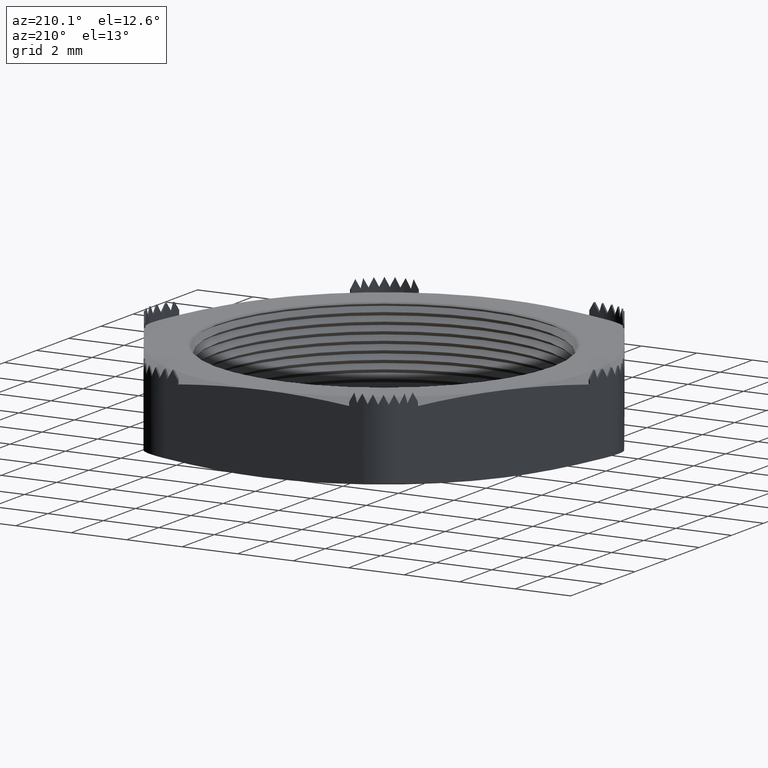
[diagram: clean part render]
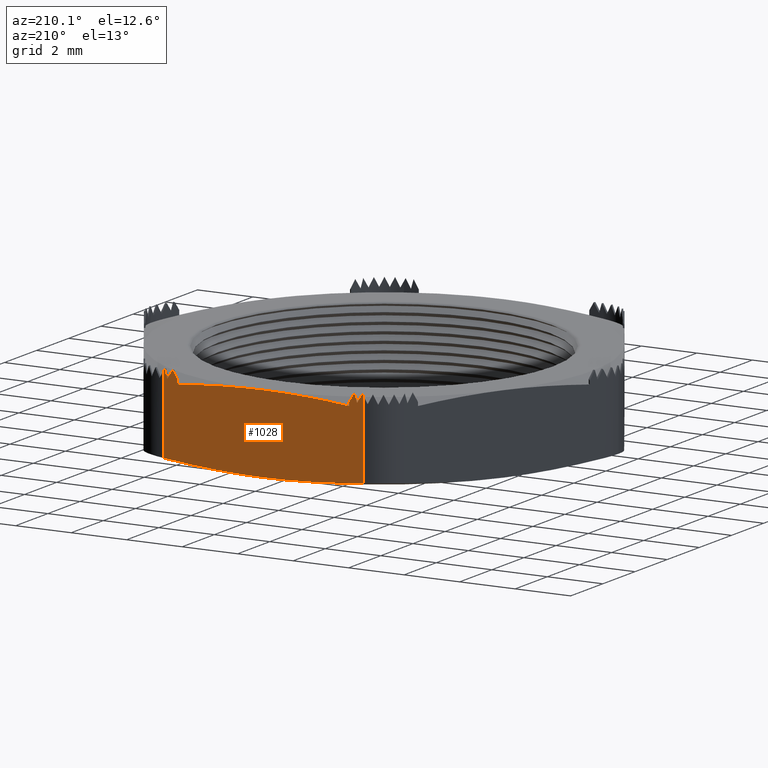
[diagram: same view with one face highlighted and labeled with its STEP entity id]
A machine part, auxiliary view. The second image highlights one B-rep face of the part: STEP entity #1028.
In plain terms, the highlighted planar face has unit normal (0, -1, 0).
Its self-contained STEP definition (entity closure, byte-faithful):
#1021 = ORIENTED_EDGE ( 'NONE', *, *, #1022, .F. ) ;
#1022 = EDGE_CURVE ( 'NONE', #1023, #1041, #2815, .T. ) ;
#1023 = VERTEX_POINT ( 'NONE', #2814 ) ;
#1028 = ADVANCED_FACE ( 'NONE', ( #2802 ), #2800, .F. ) ;
#1029 = ORIENTED_EDGE ( 'NONE', *, *, #1030, .T. ) ;
#1030 = EDGE_CURVE ( 'NONE', #1031, #1032, #2801, .T. ) ;
#1031 = VERTEX_POINT ( 'NONE', #2792 ) ;
#1032 = VERTEX_POINT ( 'NONE', #2791 ) ;
#1033 = ORIENTED_EDGE ( 'NONE', *, *, #1034, .T. ) ;
#1034 = EDGE_CURVE ( 'NONE', #1032, #1035, #2790, .T. ) ;
#1035 = VERTEX_POINT ( 'NONE', #2786 ) ;
#1036 = ORIENTED_EDGE ( 'NONE', *, *, #1037, .T. ) ;
#1037 = EDGE_CURVE ( 'NONE', #1035, #1038, #2842, .T. ) ;
#1038 = VERTEX_POINT ( 'NONE', #2838 ) ;
#1039 = ORIENTED_EDGE ( 'NONE', *, *, #1040, .F. ) ;
#1040 = EDGE_CURVE ( 'NONE', #1041, #1038, #2837, .T. ) ;
#1041 = VERTEX_POINT ( 'NONE', #2836 ) ;
#1052 = EDGE_LOOP ( 'NONE', ( #1029, #1033, #1036, #1039, #1021, #1088, #1087, #1090, #1081, #5186, #5182, #5217, #5220, #5223, #5226, #5229 ) ) ;
#1081 = ORIENTED_EDGE ( 'NONE', *, *, #5184, .T. ) ;
#1082 = VERTEX_POINT ( 'NONE', #2849 ) ;
#1083 = VERTEX_POINT ( 'NONE', #2848 ) ;
#1084 = EDGE_CURVE ( 'NONE', #1086, #1083, #2847, .T. ) ;
#1085 = EDGE_CURVE ( 'NONE', #1023, #1082, #2843, .T. ) ;
#1086 = VERTEX_POINT ( 'NONE', #2893 ) ;
#1087 = ORIENTED_EDGE ( 'NONE', *, *, #1089, .T. ) ;
#1088 = ORIENTED_EDGE ( 'NONE', *, *, #1085, .T. ) ;
#1089 = EDGE_CURVE ( 'NONE', #1082, #1086, #2892, .T. ) ;
#1090 = ORIENTED_EDGE ( 'NONE', *, *, #1084, .T. ) ;
#2786 = CARTESIAN_POINT ( 'NONE',  ( 0.1414508159514585900, 0.2950000000000001000, 0.1191615384615294500 ) ) ;
#2787 = DIRECTION ( 'NONE',  ( 0.5117634317406293300, 5.130319462189874100E-017, -0.8591264109157942300 ) ) ;
#2788 = VECTOR ( 'NONE', #2787, 39.37007874015748100 ) ;
#2789 = CARTESIAN_POINT ( 'NONE',  ( 0.1530393188332092300, 0.2950000000000001000, 0.09970725886436662700 ) ) ;
#2790 = LINE ( 'NONE', #2789, #2788 ) ;
#2791 = CARTESIAN_POINT ( 'NONE',  ( 0.1402961154130739600, 0.2950000000000000400, 0.1211000000000000100 ) ) ;
#2792 = CARTESIAN_POINT ( 'NONE',  ( 0.1364619229503844200, 0.2950000000000001000, 0.1085000000000000100 ) ) ;
#2793 = DIRECTION ( 'NONE',  ( 0.2911206058387015800, 2.918422101592736000E-017, 0.9566863607557637400 ) ) ;
#2794 = VECTOR ( 'NONE', #2793, 39.37007874015748900 ) ;
#2795 = CARTESIAN_POINT ( 'NONE',  ( 0.1397490609368820500, 0.2950000000000001000, 0.1193022586327909400 ) ) ;
#2796 = DIRECTION ( 'NONE',  ( 1.000000000000000000, 1.002478712623220600E-016, 0.0000000000000000000 ) ) ;
#2797 = DIRECTION ( 'NONE',  ( 1.002478712623220600E-016, -1.000000000000000000, 0.0000000000000000000 ) ) ;
#2798 = CARTESIAN_POINT ( 'NONE',  ( 0.1703183294109398800, 0.2950000000000001000, 0.1100000000000000000 ) ) ;
#2799 = AXIS2_PLACEMENT_3D ( 'NONE', #2798, #2797, #2796 ) ;
#2800 = PLANE ( 'NONE',  #2799 ) ;
#2801 = LINE ( 'NONE', #2795, #2794 ) ;
#2802 = FACE_OUTER_BOUND ( 'NONE', #1052, .T. ) ;
#2807 = CARTESIAN_POINT ( 'NONE',  ( -2.957312202238501300E-017, 0.2950000000000000400, 0.0000000000000000000 ) ) ;
#2808 = CARTESIAN_POINT ( 'NONE',  ( -0.02352928609322991300, 0.2950000000000001000, -4.015069561000699100E-017 ) ) ;
#2809 = CARTESIAN_POINT ( 'NONE',  ( -0.04708934561614213500, 0.2950000000000001000, 0.0007643607898576711900 ) ) ;
#2810 = CARTESIAN_POINT ( 'NONE',  ( -0.09426649561501436500, 0.2950000000000001000, 0.003709636350318036800 ) ) ;
#2811 = CARTESIAN_POINT ( 'NONE',  ( -0.1179192798982759100, 0.2949999999999999800, 0.005890966785175041400 ) ) ;
#2812 = CARTESIAN_POINT ( 'NONE',  ( -0.1414508159514582000, 0.2950000000000000400, 0.008617109962662693900 ) ) ;
#2814 = CARTESIAN_POINT ( 'NONE',  ( -0.1414508159514582000, 0.2950000000000000400, 0.008617109962662693900 ) ) ;
#2815 = B_SPLINE_CURVE_WITH_KNOTS ( 'NONE', 3,
 ( #2812, #2811, #2810, #2809, #2808, #2807 ),
 .UNSPECIFIED., .F., .F.,
 ( 4, 2, 4 ),
 ( 0.007378778710628159500, 0.009181071290591730200, 0.01098336387055529900 ),
 .UNSPECIFIED. ) ;
#2832 = CARTESIAN_POINT ( 'NONE',  ( 0.1414508159514585900, 0.2950000000000001000, 0.008617109962662771900 ) ) ;
#2833 = CARTESIAN_POINT ( 'NONE',  ( 0.09440433490880323400, 0.2950000000000001000, 0.003166745692800559900 ) ) ;
#2834 = CARTESIAN_POINT ( 'NONE',  ( 0.04726591459265924000, 0.2950000000000000400, -4.335677821982308800E-017 ) ) ;
#2835 = CARTESIAN_POINT ( 'NONE',  ( -2.957312202238501300E-017, 0.2950000000000000400, 0.0000000000000000000 ) ) ;
#2836 = CARTESIAN_POINT ( 'NONE',  ( -2.957312202238501300E-017, 0.2950000000000000400, 0.0000000000000000000 ) ) ;
#2837 = B_SPLINE_CURVE_WITH_KNOTS ( 'NONE', 3,
 ( #2835, #2834, #2833, #2832 ),
 .UNSPECIFIED., .F., .F.,
 ( 4, 4 ),
 ( 0.01098336387055529900, 0.01460383101171743000 ),
 .UNSPECIFIED. ) ;
#2838 = CARTESIAN_POINT ( 'NONE',  ( 0.1414508159514585900, 0.2950000000000001000, 0.008617109962662771900 ) ) ;
#2839 = DIRECTION ( 'NONE',  ( 0.0000000000000000000, 0.0000000000000000000, -1.000000000000000000 ) ) ;
#2840 = VECTOR ( 'NONE', #2839, 39.37007874015748100 ) ;
#2841 = CARTESIAN_POINT ( 'NONE',  ( 0.1414508159514585900, 0.2950000000000001000, 0.1100000000000000000 ) ) ;
#2842 = LINE ( 'NONE', #2841, #2840 ) ;
#2843 = LINE ( 'NONE', #2896, #2895 ) ;
#2844 = DIRECTION ( 'NONE',  ( 0.5117634317406322100, 5.130319462189904300E-017, -0.8591264109157924500 ) ) ;
#2845 = VECTOR ( 'NONE', #2844, 39.37007874015748900 ) ;
#2846 = CARTESIAN_POINT ( 'NONE',  ( -0.05406529884885176400, 0.2950000000000000400, -0.02366058145301331100 ) ) ;
#2847 = LINE ( 'NONE', #2846, #2845 ) ;
#2848 = CARTESIAN_POINT ( 'NONE',  ( -0.1327905619136147400, 0.2950000000000000400, 0.1084999999999999900 ) ) ;
#2849 = CARTESIAN_POINT ( 'NONE',  ( -0.1414508159514582000, 0.2950000000000000400, 0.1191615384615400700 ) ) ;
#2889 = DIRECTION ( 'NONE',  ( 0.5117634317406321000, 5.130319462189903700E-017, 0.8591264109157926700 ) ) ;
#2890 = VECTOR ( 'NONE', #2889, 39.37007874015748900 ) ;
#2891 = CARTESIAN_POINT ( 'NONE',  ( -0.06382596131260576100, 0.2950000000000000400, 0.2494748016364995200 ) ) ;
#2892 = LINE ( 'NONE', #2891, #2890 ) ;
#2893 = CARTESIAN_POINT ( 'NONE',  ( -0.1402961154130798700, 0.2950000000000000400, 0.1211000000000000300 ) ) ;
#2894 = DIRECTION ( 'NONE',  ( 0.0000000000000000000, 0.0000000000000000000, 1.000000000000000000 ) ) ;
#2895 = VECTOR ( 'NONE', #2894, 39.37007874015748100 ) ;
#2896 = CARTESIAN_POINT ( 'NONE',  ( -0.1414508159514582000, 0.2950000000000000400, 0.1100000000000000000 ) ) ;
#3041 = DIRECTION ( 'NONE',  ( 0.5117634317406313200, 5.130319462189896300E-017, -0.8591264109157930000 ) ) ;
#3042 = VECTOR ( 'NONE', #3041, 39.37007874015748900 ) ;
#3043 = CARTESIAN_POINT ( 'NONE',  ( -0.04569545287988494700, 0.2950000000000000400, -0.01867484123853974800 ) ) ;
#3044 = LINE ( 'NONE', #3043, #3042 ) ;
#3045 = CARTESIAN_POINT ( 'NONE',  ( -0.1289563694509252000, 0.2950000000000000400, 0.1211000000000000300 ) ) ;
#3046 = DIRECTION ( 'NONE',  ( 0.2911206058387033100, 2.918422101592753300E-017, 0.9566863607557631900 ) ) ;
#3047 = VECTOR ( 'NONE', #3046, 39.37007874015748900 ) ;
#3048 = CARTESIAN_POINT ( 'NONE',  ( -0.1066839508084002900, 0.2950000000000000400, 0.1942920678543506300 ) ) ;
#3049 = LINE ( 'NONE', #3048, #3047 ) ;
#3060 = DIRECTION ( 'NONE',  ( 0.0000000000000000000, 0.0000000000000000000, 1.000000000000000000 ) ) ;
#3061 = VECTOR ( 'NONE', #3060, 39.37007874015748100 ) ;
#3062 = CARTESIAN_POINT ( 'NONE',  ( -0.1214508159514582100, 0.2950000000000002600, -19685.03937007874300 ) ) ;
#3063 = LINE ( 'NONE', #3062, #3061 ) ;
#3107 = CARTESIAN_POINT ( 'NONE',  ( 0.1214508159525595300, 0.2950000000043654400, 0.1084999999985385800 ) ) ;
#3108 = DIRECTION ( 'NONE',  ( 0.0000000000000000000, 0.0000000000000000000, 1.000000000000000000 ) ) ;
#3109 = VECTOR ( 'NONE', #3108, 39.37007874015748100 ) ;
#3110 = CARTESIAN_POINT ( 'NONE',  ( 0.1214508159514549700, 0.2950000000000013200, -19685.03937007874300 ) ) ;
#3111 = CARTESIAN_POINT ( 'NONE',  ( -2.957312202238501900E-017, 0.2950000000000001000, 0.1100000000000000000 ) ) ;
#3112 = CARTESIAN_POINT ( 'NONE',  ( 0.04056998773325221800, 0.2950000000000000400, 0.1100000000000000000 ) ) ;
#3113 = CARTESIAN_POINT ( 'NONE',  ( 0.08104676174260429200, 0.2950000000000001000, 0.1076847261952576800 ) ) ;
#3114 = CARTESIAN_POINT ( 'NONE',  ( 0.1214508159514320100, 0.2950000000000001000, 0.1035632135428867100 ) ) ;
#3115 = CARTESIAN_POINT ( 'NONE',  ( 0.1214508159514320100, 0.2950000000000001000, 0.1035632135428867100 ) ) ;
#3116 = B_SPLINE_CURVE_WITH_KNOTS ( 'NONE', 3,
 ( #3114, #3113, #3112, #3111 ),
 .UNSPECIFIED., .F., .F.,
 ( 4, 4 ),
 ( 0.01777985833265685900, 0.02088293686037025900 ),
 .UNSPECIFIED. ) ;
#3117 = LINE ( 'NONE', #3110, #3109 ) ;
#3118 = CARTESIAN_POINT ( 'NONE',  ( -0.1214508159514581100, 0.2950000000000000400, 0.1035632135428840400 ) ) ;
#3119 = CARTESIAN_POINT ( 'NONE',  ( -0.08095173594883470200, 0.2950000000000000400, 0.1076944195297268000 ) ) ;
#3120 = CARTESIAN_POINT ( 'NONE',  ( -0.04040025939456311900, 0.2950000000000000400, 0.1100000000000000000 ) ) ;
#3121 = CARTESIAN_POINT ( 'NONE',  ( -2.957312202238501900E-017, 0.2950000000000001000, 0.1100000000000000000 ) ) ;
#3122 = CARTESIAN_POINT ( 'NONE',  ( -2.957312202238501900E-017, 0.2950000000000001000, 0.1100000000000000000 ) ) ;
#3123 = B_SPLINE_CURVE_WITH_KNOTS ( 'NONE', 3,
 ( #3121, #3120, #3119, #3118 ),
 .UNSPECIFIED., .F., .F.,
 ( 4, 4 ),
 ( 0.02088293686037025900, 0.02397303336879408700 ),
 .UNSPECIFIED. ) ;
#3124 = CARTESIAN_POINT ( 'NONE',  ( -0.1214508159514581100, 0.2950000000000000400, 0.1035632135428840400 ) ) ;
#3141 = CARTESIAN_POINT ( 'NONE',  ( -0.1214508159519646200, 0.2950000000027677100, 0.1084999999979791000 ) ) ;
#3142 = DIRECTION ( 'NONE',  ( 0.5117634317406293300, 5.130319462189874100E-017, -0.8591264109157942300 ) ) ;
#3143 = VECTOR ( 'NONE', #3142, 39.37007874015748100 ) ;
#3144 = CARTESIAN_POINT ( 'NONE',  ( 0.1446694728642422000, 0.2950000000000001000, 0.09472151864989325500 ) ) ;
#3145 = LINE ( 'NONE', #3144, #3143 ) ;
#3146 = CARTESIAN_POINT ( 'NONE',  ( 0.1289563694509192900, 0.2950000000000001000, 0.1211000000000000100 ) ) ;
#3147 = DIRECTION ( 'NONE',  ( 0.5117634317406285500, 5.130319462189867300E-017, 0.8591264109157946700 ) ) ;
#3148 = VECTOR ( 'NONE', #3147, 39.37007874015748900 ) ;
#3149 = CARTESIAN_POINT ( 'NONE',  ( 0.1349088104004882200, 0.2950000000000001000, 0.1310927015335929300 ) ) ;
#3150 = LINE ( 'NONE', #3149, #3148 ) ;
#5182 = ORIENTED_EDGE ( 'NONE', *, *, #5183, .F. ) ;
#5183 = EDGE_CURVE ( 'NONE', #5216, #5231, #3063, .T. ) ;
#5184 = EDGE_CURVE ( 'NONE', #1083, #5185, #3049, .T. ) ;
#5185 = VERTEX_POINT ( 'NONE', #3045 ) ;
#5186 = ORIENTED_EDGE ( 'NONE', *, *, #5187, .T. ) ;
#5187 = EDGE_CURVE ( 'NONE', #5185, #5231, #3044, .T. ) ;
#5216 = VERTEX_POINT ( 'NONE', #3124 ) ;
#5217 = ORIENTED_EDGE ( 'NONE', *, *, #5218, .F. ) ;
#5218 = EDGE_CURVE ( 'NONE', #5219, #5216, #3123, .T. ) ;
#5219 = VERTEX_POINT ( 'NONE', #3122 ) ;
#5220 = ORIENTED_EDGE ( 'NONE', *, *, #5221, .F. ) ;
#5221 = EDGE_CURVE ( 'NONE', #5222, #5219, #3116, .T. ) ;
#5222 = VERTEX_POINT ( 'NONE', #3115 ) ;
#5223 = ORIENTED_EDGE ( 'NONE', *, *, #5224, .T. ) ;
#5224 = EDGE_CURVE ( 'NONE', #5222, #5225, #3117, .T. ) ;
#5225 = VERTEX_POINT ( 'NONE', #3107 ) ;
#5226 = ORIENTED_EDGE ( 'NONE', *, *, #5227, .T. ) ;
#5227 = EDGE_CURVE ( 'NONE', #5225, #5228, #3150, .T. ) ;
#5228 = VERTEX_POINT ( 'NONE', #3146 ) ;
#5229 = ORIENTED_EDGE ( 'NONE', *, *, #5230, .T. ) ;
#5230 = EDGE_CURVE ( 'NONE', #5228, #1031, #3145, .T. ) ;
#5231 = VERTEX_POINT ( 'NONE', #3141 ) ;